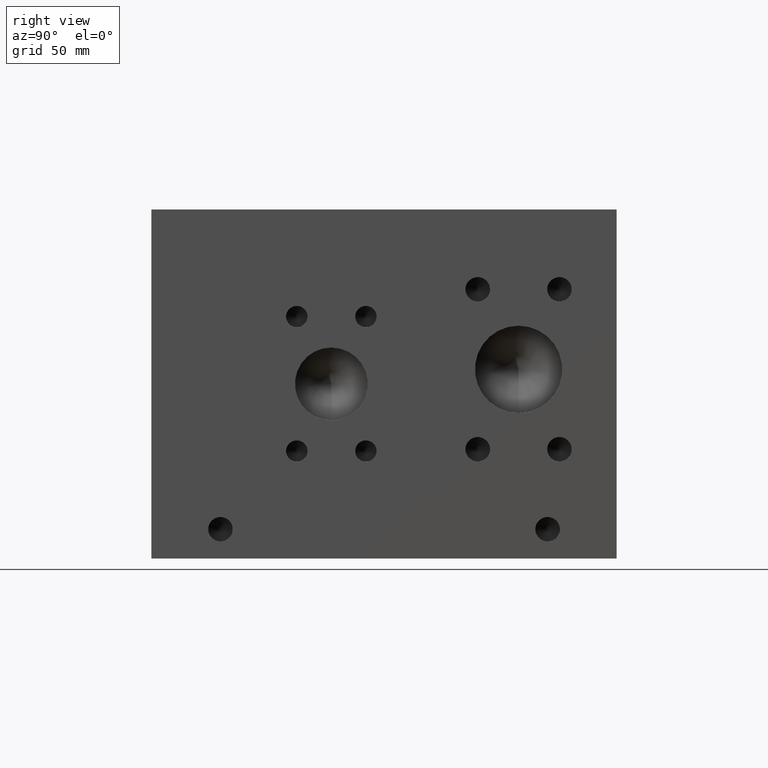
[diagram: clean part render]
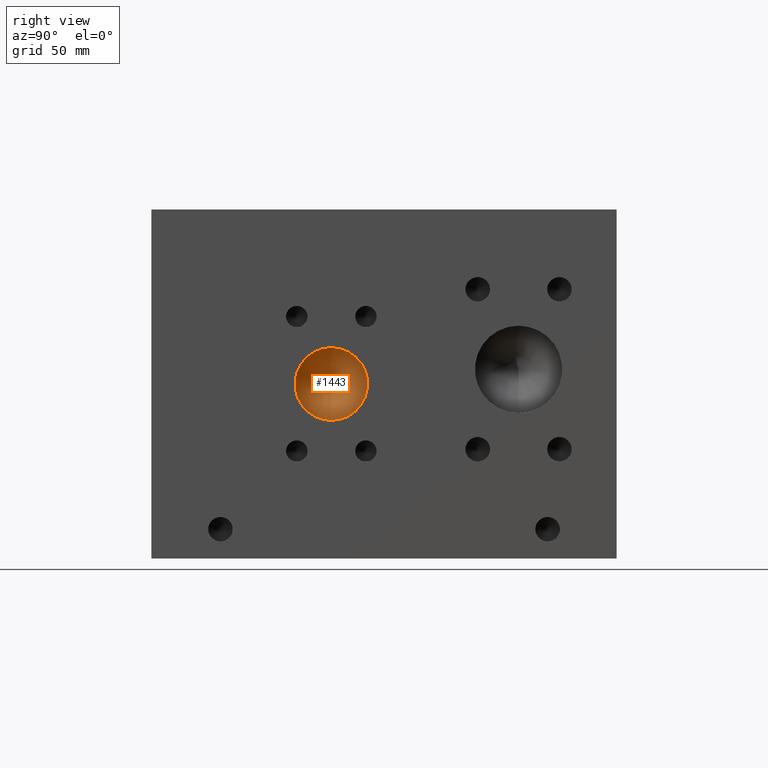
[diagram: same view with one face highlighted and labeled with its STEP entity id]
A machine part, right view. The second image highlights one B-rep face of the part: STEP entity #1443.
In plain terms, the highlighted conical surface has half-angle 60 deg.
Its self-contained STEP definition (entity closure, byte-faithful):
#1427=CARTESIAN_POINT('',(179.926846750000040,78.587600000000009,76.200000000000017));
#1428=DIRECTION('',(1.0,0.0,0.0));
#1429=DIRECTION('',(0.0,0.0,-1.0));
#1430=AXIS2_PLACEMENT_3D('',#1427,#1428,#1429);
#1431=CONICAL_SURFACE('',#1430,7.937500000000002,60.000000063301407);
#1432=CARTESIAN_POINT('',(184.509564500000040,78.587600000000009,60.325000000000003));
#1433=VERTEX_POINT('',#1432);
#1434=CARTESIAN_POINT('',(184.509564500000040,78.587600000000009,76.200000000000017));
#1435=DIRECTION('',(1.0,0.0,0.0));
#1436=DIRECTION('',(0.0,0.0,-1.0));
#1437=AXIS2_PLACEMENT_3D('',#1434,#1435,#1436);
#1438=CIRCLE('',#1437,15.875000000000004);
#1439=EDGE_CURVE('',#1433,#1433,#1438,.T.);
#1440=ORIENTED_EDGE('',*,*,#1439,.T.);
#1441=EDGE_LOOP('',(#1440));
#1442=FACE_OUTER_BOUND('',#1441,.T.);
#1443=ADVANCED_FACE('',(#1442),#1431,.F.);